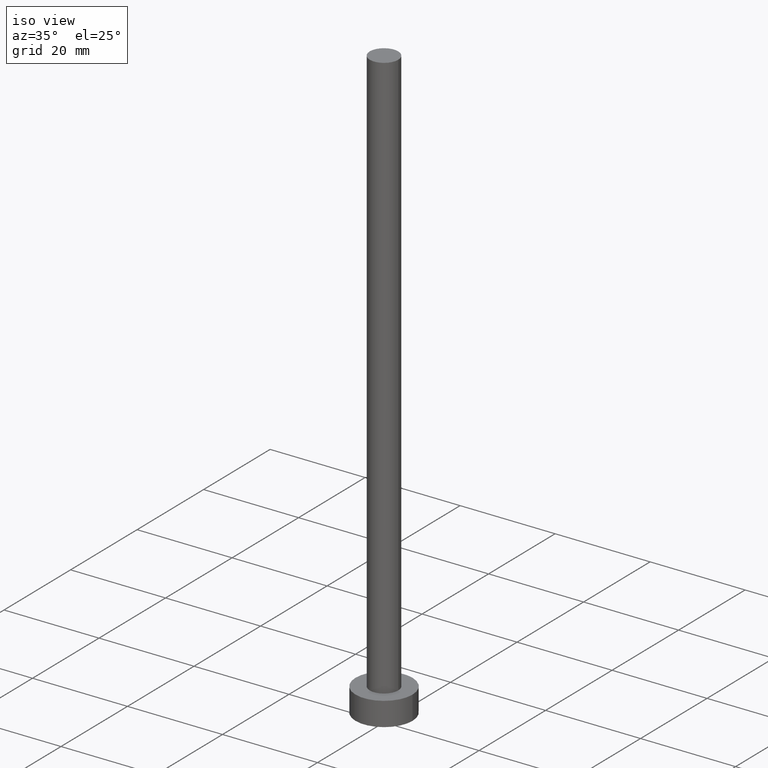
[diagram: clean part render]
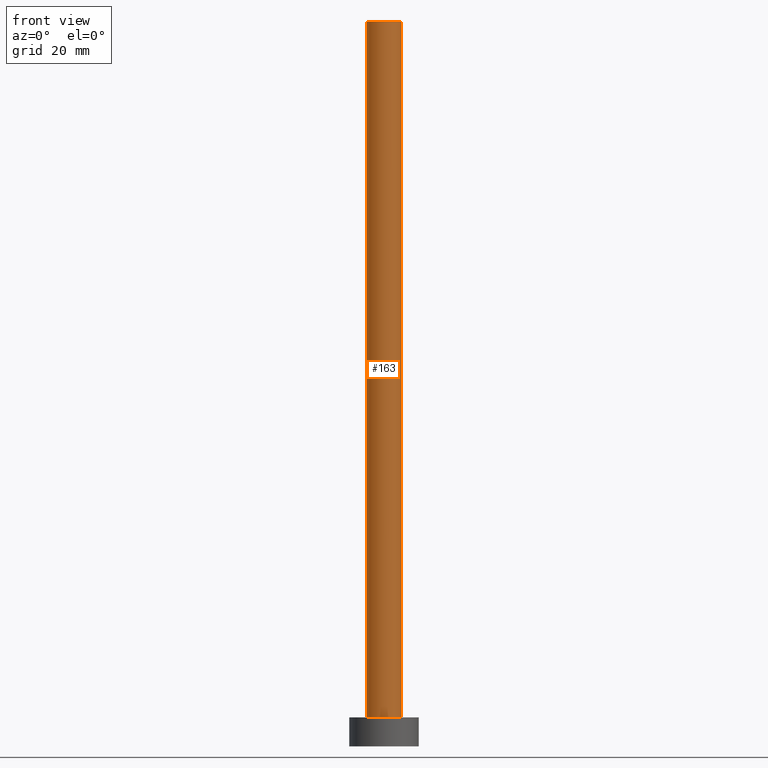
[diagram: tour spotlight — one face highlighted and labeled with its STEP entity id]
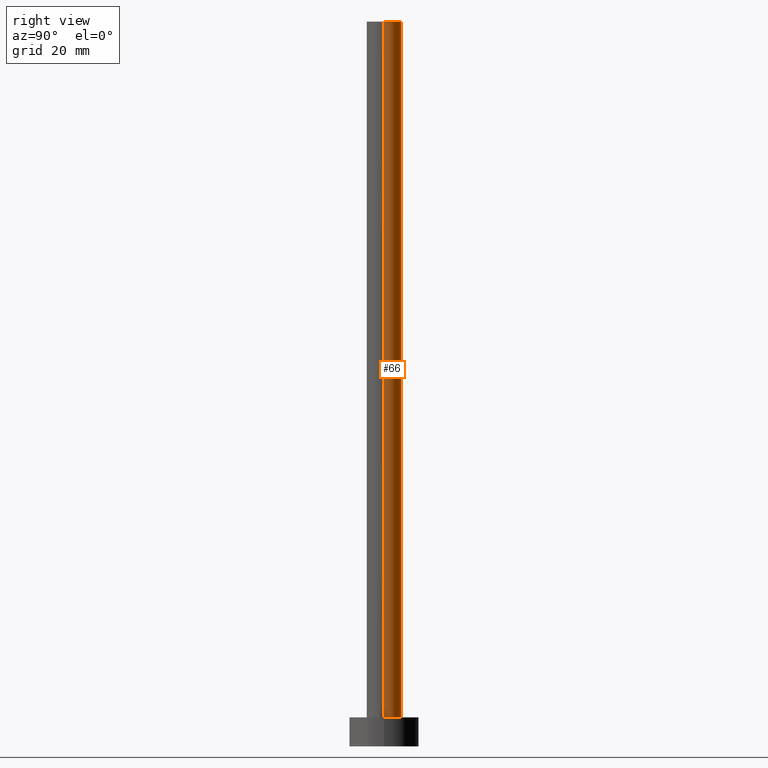
[diagram: tour spotlight — one face highlighted and labeled with its STEP entity id]
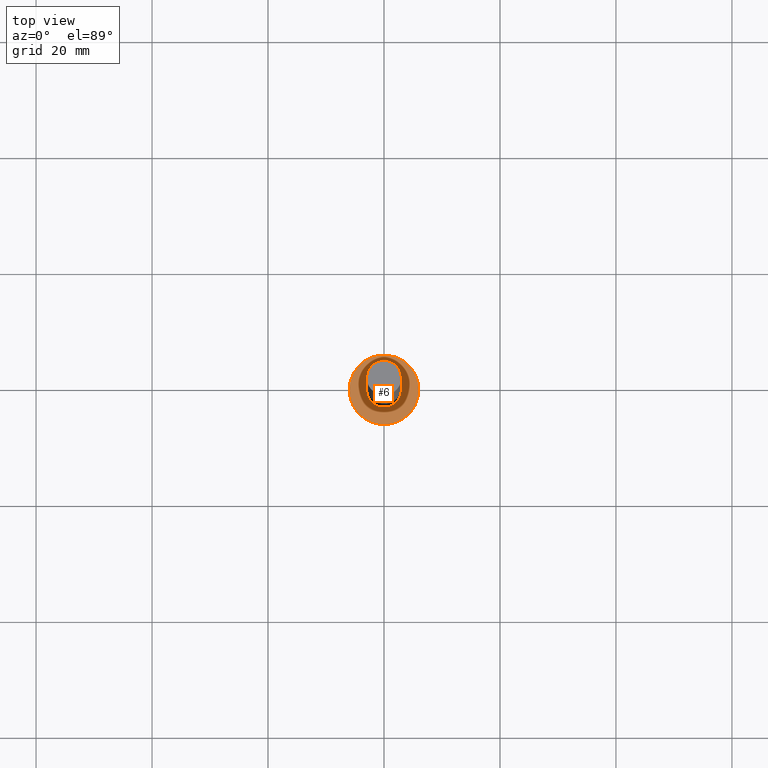
[diagram: tour spotlight — one face highlighted and labeled with its STEP entity id]
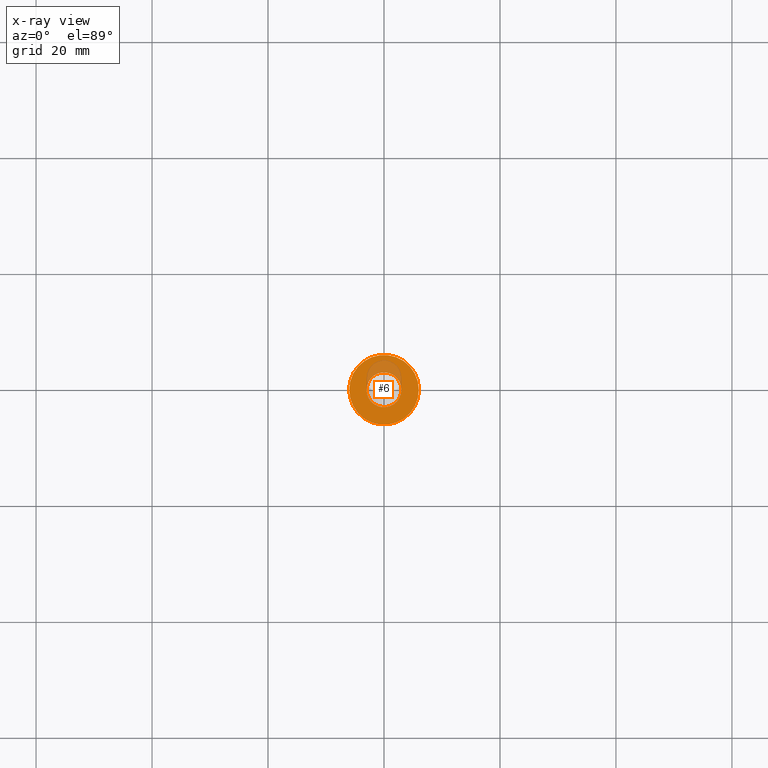
[diagram: x-ray of the same camera — body ghosted, this tour face saturated]
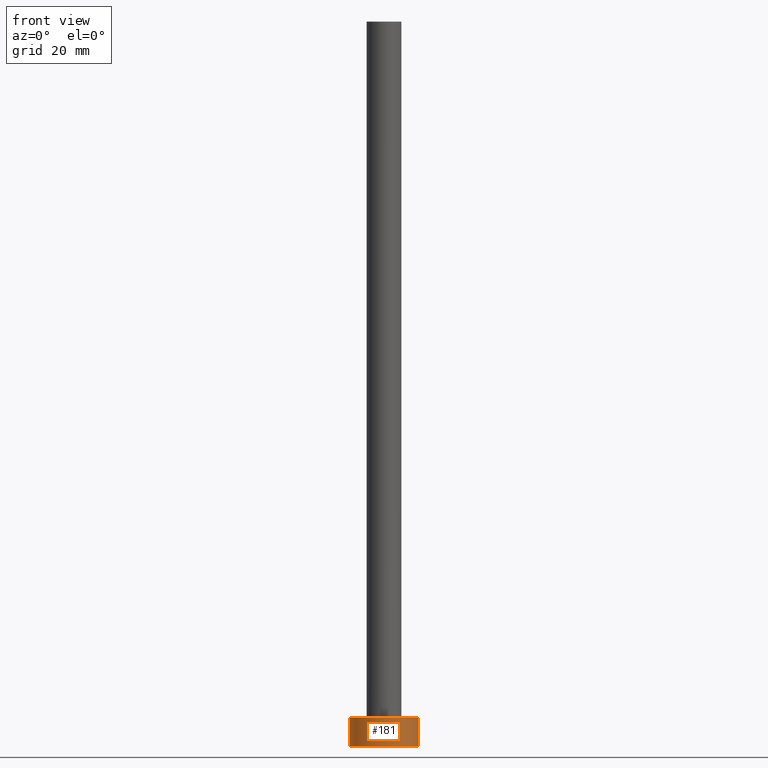
[diagram: tour spotlight — one face highlighted and labeled with its STEP entity id]
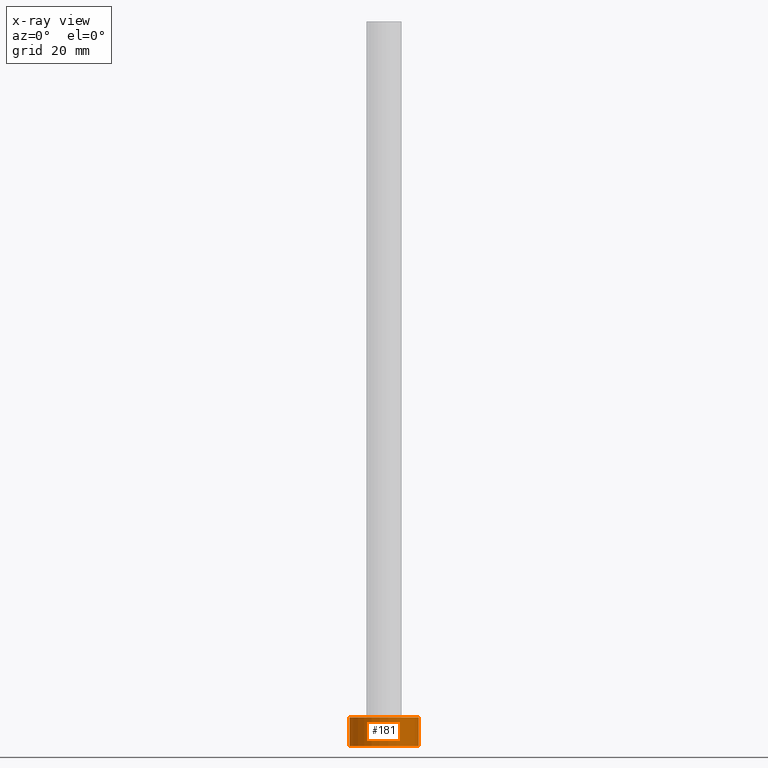
[diagram: x-ray of the same camera — body ghosted, this tour face saturated]
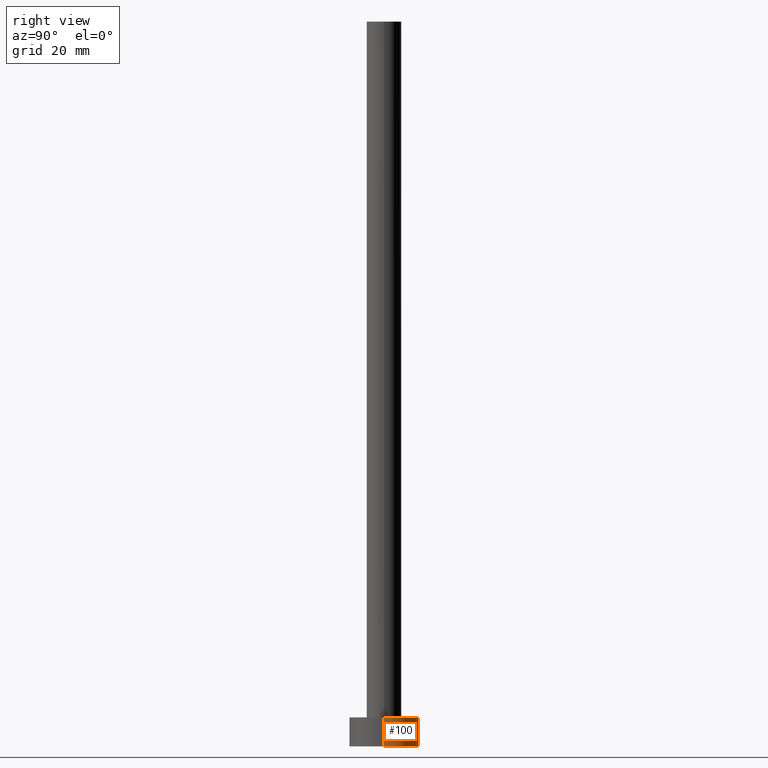
[diagram: tour spotlight — one face highlighted and labeled with its STEP entity id]
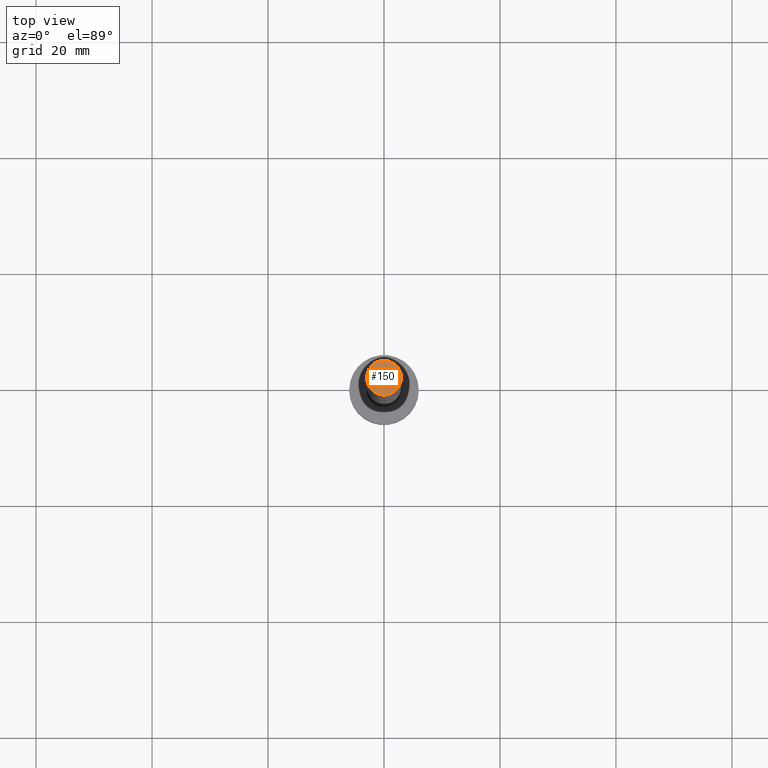
[diagram: tour spotlight — one face highlighted and labeled with its STEP entity id]
A machine part: a face-by-face anatomy tour. The part has 7 B-rep faces; the first image is the clean iso view, then the 6 largest visible faces are spotlighted one at a time (largest first), each with its STEP entity span.

Face 1 — front view, entity #163. In plain terms, the highlighted cylindrical surface (edge-blend (fillet) strip) has radius 3 mm, axis along (-0, -0, -1).
Definition (entity closure, byte-faithful):
#8 = AXIS2_PLACEMENT_3D ( 'NONE', #63, #28, #179 ) ;
#10 = CYLINDRICAL_SURFACE ( 'NONE', #159, 3.000000000000000444 ) ;
#11 = CARTESIAN_POINT ( 'NONE',  ( 0.000000000000000000, 0.000000000000000000, 125.0000000000000000 ) ) ;
#16 = EDGE_CURVE ( 'NONE', #156, #219, #175, .T. ) ;
#28 = DIRECTION ( 'NONE',  ( 0.000000000000000000, 0.000000000000000000, 1.000000000000000000 ) ) ;
#46 = CARTESIAN_POINT ( 'NONE',  ( 3.000000000000000444, 3.673940397442060361E-16, 5.000000000000000000 ) ) ;
#55 = VERTEX_POINT ( 'NONE', #74 ) ;
#60 = FACE_OUTER_BOUND ( 'NONE', #130, .T. ) ;
#63 = CARTESIAN_POINT ( 'NONE',  ( 0.000000000000000000, 0.000000000000000000, 5.000000000000000000 ) ) ;
#74 = CARTESIAN_POINT ( 'NONE',  ( -3.000000000000000444, 0.000000000000000000, 5.000000000000000000 ) ) ;
#75 = CIRCLE ( 'NONE', #107, 3.000000000000000444 ) ;
#80 = DIRECTION ( 'NONE',  ( 0.000000000000000000, 0.000000000000000000, 1.000000000000000000 ) ) ;
#83 = ORIENTED_EDGE ( 'NONE', *, *, #16, .F. ) ;
#91 = ORIENTED_EDGE ( 'NONE', *, *, #235, .T. ) ;
#107 = AXIS2_PLACEMENT_3D ( 'NONE', #139, #80, #162 ) ;
#110 = EDGE_CURVE ( 'NONE', #212, #55, #245, .T. ) ;
#111 = CARTESIAN_POINT ( 'NONE',  ( 3.000000000000000444, 3.673940397442060361E-16, 125.0000000000000000 ) ) ;
#120 = DIRECTION ( 'NONE',  ( -0.000000000000000000, -0.000000000000000000, -1.000000000000000000 ) ) ;
#130 = EDGE_LOOP ( 'NONE', ( #83, #218, #173, #91 ) ) ;
#139 = CARTESIAN_POINT ( 'NONE',  ( 0.000000000000000000, 0.000000000000000000, 125.0000000000000000 ) ) ;
#140 = CARTESIAN_POINT ( 'NONE',  ( 3.000000000000000444, 3.673940397442060361E-16, 125.0000000000000000 ) ) ;
#152 = DIRECTION ( 'NONE',  ( -0.000000000000000000, -0.000000000000000000, -1.000000000000000000 ) ) ;
#154 = CIRCLE ( 'NONE', #8, 3.000000000000000444 ) ;
#156 = VERTEX_POINT ( 'NONE', #140 ) ;
#157 = VECTOR ( 'NONE', #120, 1000.000000000000000 ) ;
#158 = DIRECTION ( 'NONE',  ( -1.000000000000000000, 0.000000000000000000, 0.000000000000000000 ) ) ;
#159 = AXIS2_PLACEMENT_3D ( 'NONE', #11, #182, #158 ) ;
#162 = DIRECTION ( 'NONE',  ( 1.000000000000000000, 0.000000000000000000, 0.000000000000000000 ) ) ;
#163 = ADVANCED_FACE ( 'NONE', ( #60 ), #10, .T. ) ;
#173 = ORIENTED_EDGE ( 'NONE', *, *, #110, .T. ) ;
#175 = LINE ( 'NONE', #111, #213 ) ;
#179 = DIRECTION ( 'NONE',  ( 1.000000000000000000, 0.000000000000000000, 0.000000000000000000 ) ) ;
#182 = DIRECTION ( 'NONE',  ( -0.000000000000000000, -0.000000000000000000, -1.000000000000000000 ) ) ;
#186 = EDGE_CURVE ( 'NONE', #212, #156, #75, .T. ) ;
#198 = CARTESIAN_POINT ( 'NONE',  ( -3.000000000000000444, 0.000000000000000000, 125.0000000000000000 ) ) ;
#212 = VERTEX_POINT ( 'NONE', #223 ) ;
#213 = VECTOR ( 'NONE', #152, 1000.000000000000000 ) ;
#218 = ORIENTED_EDGE ( 'NONE', *, *, #186, .F. ) ;
#219 = VERTEX_POINT ( 'NONE', #46 ) ;
#223 = CARTESIAN_POINT ( 'NONE',  ( -3.000000000000000444, 0.000000000000000000, 125.0000000000000000 ) ) ;
#235 = EDGE_CURVE ( 'NONE', #55, #219, #154, .T. ) ;
#245 = LINE ( 'NONE', #198, #157 ) ;

Face 2 — right view, entity #66. In plain terms, the highlighted cylindrical surface (edge-blend (fillet) strip) has radius 3 mm, axis along (-0, -0, -1).
Definition (entity closure, byte-faithful):
#15 = CIRCLE ( 'NONE', #220, 3.000000000000000444 ) ;
#16 = EDGE_CURVE ( 'NONE', #156, #219, #175, .T. ) ;
#31 = DIRECTION ( 'NONE',  ( 1.000000000000000000, 0.000000000000000000, 0.000000000000000000 ) ) ;
#41 = ORIENTED_EDGE ( 'NONE', *, *, #16, .T. ) ;
#46 = CARTESIAN_POINT ( 'NONE',  ( 3.000000000000000444, 3.673940397442060361E-16, 5.000000000000000000 ) ) ;
#55 = VERTEX_POINT ( 'NONE', #74 ) ;
#57 = EDGE_CURVE ( 'NONE', #156, #212, #15, .T. ) ;
#58 = FACE_OUTER_BOUND ( 'NONE', #241, .T. ) ;
#66 = ADVANCED_FACE ( 'NONE', ( #58 ), #240, .T. ) ;
#74 = CARTESIAN_POINT ( 'NONE',  ( -3.000000000000000444, 0.000000000000000000, 5.000000000000000000 ) ) ;
#93 = ORIENTED_EDGE ( 'NONE', *, *, #233, .T. ) ;
#106 = AXIS2_PLACEMENT_3D ( 'NONE', #118, #180, #31 ) ;
#109 = ORIENTED_EDGE ( 'NONE', *, *, #110, .F. ) ;
#110 = EDGE_CURVE ( 'NONE', #212, #55, #245, .T. ) ;
#111 = CARTESIAN_POINT ( 'NONE',  ( 3.000000000000000444, 3.673940397442060361E-16, 125.0000000000000000 ) ) ;
#118 = CARTESIAN_POINT ( 'NONE',  ( 0.000000000000000000, 0.000000000000000000, 5.000000000000000000 ) ) ;
#120 = DIRECTION ( 'NONE',  ( -0.000000000000000000, -0.000000000000000000, -1.000000000000000000 ) ) ;
#131 = AXIS2_PLACEMENT_3D ( 'NONE', #135, #195, #136 ) ;
#135 = CARTESIAN_POINT ( 'NONE',  ( 0.000000000000000000, 0.000000000000000000, 125.0000000000000000 ) ) ;
#136 = DIRECTION ( 'NONE',  ( -1.000000000000000000, 0.000000000000000000, 0.000000000000000000 ) ) ;
#140 = CARTESIAN_POINT ( 'NONE',  ( 3.000000000000000444, 3.673940397442060361E-16, 125.0000000000000000 ) ) ;
#152 = DIRECTION ( 'NONE',  ( -0.000000000000000000, -0.000000000000000000, -1.000000000000000000 ) ) ;
#153 = CARTESIAN_POINT ( 'NONE',  ( 0.000000000000000000, 0.000000000000000000, 125.0000000000000000 ) ) ;
#155 = DIRECTION ( 'NONE',  ( 1.000000000000000000, 0.000000000000000000, 0.000000000000000000 ) ) ;
#156 = VERTEX_POINT ( 'NONE', #140 ) ;
#157 = VECTOR ( 'NONE', #120, 1000.000000000000000 ) ;
#174 = ORIENTED_EDGE ( 'NONE', *, *, #57, .F. ) ;
#175 = LINE ( 'NONE', #111, #213 ) ;
#180 = DIRECTION ( 'NONE',  ( 0.000000000000000000, 0.000000000000000000, 1.000000000000000000 ) ) ;
#195 = DIRECTION ( 'NONE',  ( -0.000000000000000000, -0.000000000000000000, -1.000000000000000000 ) ) ;
#198 = CARTESIAN_POINT ( 'NONE',  ( -3.000000000000000444, 0.000000000000000000, 125.0000000000000000 ) ) ;
#212 = VERTEX_POINT ( 'NONE', #223 ) ;
#213 = VECTOR ( 'NONE', #152, 1000.000000000000000 ) ;
#219 = VERTEX_POINT ( 'NONE', #46 ) ;
#220 = AXIS2_PLACEMENT_3D ( 'NONE', #153, #239, #155 ) ;
#223 = CARTESIAN_POINT ( 'NONE',  ( -3.000000000000000444, 0.000000000000000000, 125.0000000000000000 ) ) ;
#226 = CIRCLE ( 'NONE', #106, 3.000000000000000444 ) ;
#233 = EDGE_CURVE ( 'NONE', #219, #55, #226, .T. ) ;
#239 = DIRECTION ( 'NONE',  ( 0.000000000000000000, 0.000000000000000000, 1.000000000000000000 ) ) ;
#240 = CYLINDRICAL_SURFACE ( 'NONE', #131, 3.000000000000000444 ) ;
#241 = EDGE_LOOP ( 'NONE', ( #174, #41, #93, #109 ) ) ;
#245 = LINE ( 'NONE', #198, #157 ) ;

Face 3 — top view, entity #6. An x-ray twin of the same camera follows (body ghosted, this face saturated) — the face is partly hidden behind the body. In plain terms, the highlighted planar face has unit normal (0, 0, 1).
Definition (entity closure, byte-faithful):
#1 = CIRCLE ( 'NONE', #123, 6.000000000000000888 ) ;
#6 = ADVANCED_FACE ( 'NONE', ( #76, #178 ), #73, .T. ) ;
#7 = ORIENTED_EDGE ( 'NONE', *, *, #235, .F. ) ;
#8 = AXIS2_PLACEMENT_3D ( 'NONE', #63, #28, #179 ) ;
#22 = VERTEX_POINT ( 'NONE', #24 ) ;
#24 = CARTESIAN_POINT ( 'NONE',  ( 6.000000000000000888, 7.347880794884120722E-16, 5.000000000000000000 ) ) ;
#26 = DIRECTION ( 'NONE',  ( 1.000000000000000000, 0.000000000000000000, -0.000000000000000000 ) ) ;
#27 = DIRECTION ( 'NONE',  ( 1.000000000000000000, 0.000000000000000000, 0.000000000000000000 ) ) ;
#28 = DIRECTION ( 'NONE',  ( 0.000000000000000000, 0.000000000000000000, 1.000000000000000000 ) ) ;
#29 = EDGE_CURVE ( 'NONE', #22, #151, #204, .T. ) ;
#31 = DIRECTION ( 'NONE',  ( 1.000000000000000000, 0.000000000000000000, 0.000000000000000000 ) ) ;
#33 = ORIENTED_EDGE ( 'NONE', *, *, #89, .T. ) ;
#39 = DIRECTION ( 'NONE',  ( 0.000000000000000000, 0.000000000000000000, 1.000000000000000000 ) ) ;
#42 = CARTESIAN_POINT ( 'NONE',  ( 0.000000000000000000, 0.000000000000000000, 5.000000000000000000 ) ) ;
#44 = CARTESIAN_POINT ( 'NONE',  ( 0.000000000000000000, 0.000000000000000000, 5.000000000000000000 ) ) ;
#46 = CARTESIAN_POINT ( 'NONE',  ( 3.000000000000000444, 3.673940397442060361E-16, 5.000000000000000000 ) ) ;
#54 = AXIS2_PLACEMENT_3D ( 'NONE', #44, #39, #26 ) ;
#55 = VERTEX_POINT ( 'NONE', #74 ) ;
#59 = DIRECTION ( 'NONE',  ( 0.000000000000000000, 0.000000000000000000, 1.000000000000000000 ) ) ;
#63 = CARTESIAN_POINT ( 'NONE',  ( 0.000000000000000000, 0.000000000000000000, 5.000000000000000000 ) ) ;
#71 = AXIS2_PLACEMENT_3D ( 'NONE', #42, #59, #129 ) ;
#73 = PLANE ( 'NONE',  #54 ) ;
#74 = CARTESIAN_POINT ( 'NONE',  ( -3.000000000000000444, 0.000000000000000000, 5.000000000000000000 ) ) ;
#76 = FACE_BOUND ( 'NONE', #133, .T. ) ;
#89 = EDGE_CURVE ( 'NONE', #151, #22, #1, .T. ) ;
#101 = ORIENTED_EDGE ( 'NONE', *, *, #233, .F. ) ;
#106 = AXIS2_PLACEMENT_3D ( 'NONE', #118, #180, #31 ) ;
#114 = EDGE_LOOP ( 'NONE', ( #33, #124 ) ) ;
#115 = CARTESIAN_POINT ( 'NONE',  ( 0.000000000000000000, 0.000000000000000000, 5.000000000000000000 ) ) ;
#118 = CARTESIAN_POINT ( 'NONE',  ( 0.000000000000000000, 0.000000000000000000, 5.000000000000000000 ) ) ;
#123 = AXIS2_PLACEMENT_3D ( 'NONE', #115, #197, #27 ) ;
#124 = ORIENTED_EDGE ( 'NONE', *, *, #29, .T. ) ;
#129 = DIRECTION ( 'NONE',  ( 1.000000000000000000, 0.000000000000000000, 0.000000000000000000 ) ) ;
#133 = EDGE_LOOP ( 'NONE', ( #7, #101 ) ) ;
#151 = VERTEX_POINT ( 'NONE', #164 ) ;
#154 = CIRCLE ( 'NONE', #8, 3.000000000000000444 ) ;
#164 = CARTESIAN_POINT ( 'NONE',  ( -6.000000000000000888, 0.000000000000000000, 5.000000000000000000 ) ) ;
#178 = FACE_OUTER_BOUND ( 'NONE', #114, .T. ) ;
#179 = DIRECTION ( 'NONE',  ( 1.000000000000000000, 0.000000000000000000, 0.000000000000000000 ) ) ;
#180 = DIRECTION ( 'NONE',  ( 0.000000000000000000, 0.000000000000000000, 1.000000000000000000 ) ) ;
#197 = DIRECTION ( 'NONE',  ( 0.000000000000000000, 0.000000000000000000, 1.000000000000000000 ) ) ;
#204 = CIRCLE ( 'NONE', #71, 6.000000000000000888 ) ;
#219 = VERTEX_POINT ( 'NONE', #46 ) ;
#226 = CIRCLE ( 'NONE', #106, 3.000000000000000444 ) ;
#233 = EDGE_CURVE ( 'NONE', #219, #55, #226, .T. ) ;
#235 = EDGE_CURVE ( 'NONE', #55, #219, #154, .T. ) ;

Face 4 — front view, entity #181. An x-ray twin of the same camera follows (body ghosted, this face saturated) — the face is partly hidden behind the body. In plain terms, the highlighted cylindrical surface (edge-blend (fillet) strip) has radius 6 mm, axis along (-0, -0, -1).
Definition (entity closure, byte-faithful):
#1 = CIRCLE ( 'NONE', #123, 6.000000000000000888 ) ;
#3 = ORIENTED_EDGE ( 'NONE', *, *, #43, .T. ) ;
#4 = LINE ( 'NONE', #236, #196 ) ;
#14 = DIRECTION ( 'NONE',  ( -0.000000000000000000, -0.000000000000000000, -1.000000000000000000 ) ) ;
#22 = VERTEX_POINT ( 'NONE', #24 ) ;
#23 = DIRECTION ( 'NONE',  ( 0.000000000000000000, 0.000000000000000000, 1.000000000000000000 ) ) ;
#24 = CARTESIAN_POINT ( 'NONE',  ( 6.000000000000000888, 7.347880794884120722E-16, 5.000000000000000000 ) ) ;
#25 = EDGE_CURVE ( 'NONE', #185, #211, #142, .T. ) ;
#27 = DIRECTION ( 'NONE',  ( 1.000000000000000000, 0.000000000000000000, 0.000000000000000000 ) ) ;
#43 = EDGE_CURVE ( 'NONE', #151, #185, #4, .T. ) ;
#56 = DIRECTION ( 'NONE',  ( -0.000000000000000000, -0.000000000000000000, -1.000000000000000000 ) ) ;
#72 = ORIENTED_EDGE ( 'NONE', *, *, #89, .F. ) ;
#81 = CARTESIAN_POINT ( 'NONE',  ( -6.000000000000000888, 0.000000000000000000, 0.000000000000000000 ) ) ;
#89 = EDGE_CURVE ( 'NONE', #151, #22, #1, .T. ) ;
#96 = FACE_OUTER_BOUND ( 'NONE', #177, .T. ) ;
#97 = CARTESIAN_POINT ( 'NONE',  ( 0.000000000000000000, 0.000000000000000000, 5.000000000000000000 ) ) ;
#98 = AXIS2_PLACEMENT_3D ( 'NONE', #193, #23, #215 ) ;
#115 = CARTESIAN_POINT ( 'NONE',  ( 0.000000000000000000, 0.000000000000000000, 5.000000000000000000 ) ) ;
#119 = DIRECTION ( 'NONE',  ( -0.000000000000000000, -0.000000000000000000, -1.000000000000000000 ) ) ;
#123 = AXIS2_PLACEMENT_3D ( 'NONE', #115, #197, #27 ) ;
#142 = CIRCLE ( 'NONE', #98, 6.000000000000000888 ) ;
#148 = ORIENTED_EDGE ( 'NONE', *, *, #25, .T. ) ;
#151 = VERTEX_POINT ( 'NONE', #164 ) ;
#161 = CYLINDRICAL_SURFACE ( 'NONE', #227, 6.000000000000000888 ) ;
#164 = CARTESIAN_POINT ( 'NONE',  ( -6.000000000000000888, 0.000000000000000000, 5.000000000000000000 ) ) ;
#172 = EDGE_CURVE ( 'NONE', #22, #211, #243, .T. ) ;
#177 = EDGE_LOOP ( 'NONE', ( #234, #72, #3, #148 ) ) ;
#181 = ADVANCED_FACE ( 'NONE', ( #96 ), #161, .T. ) ;
#185 = VERTEX_POINT ( 'NONE', #81 ) ;
#193 = CARTESIAN_POINT ( 'NONE',  ( 0.000000000000000000, 0.000000000000000000, 0.000000000000000000 ) ) ;
#196 = VECTOR ( 'NONE', #56, 1000.000000000000000 ) ;
#197 = DIRECTION ( 'NONE',  ( 0.000000000000000000, 0.000000000000000000, 1.000000000000000000 ) ) ;
#199 = CARTESIAN_POINT ( 'NONE',  ( 6.000000000000000888, 7.347880794884120722E-16, 0.000000000000000000 ) ) ;
#211 = VERTEX_POINT ( 'NONE', #199 ) ;
#215 = DIRECTION ( 'NONE',  ( 1.000000000000000000, 0.000000000000000000, 0.000000000000000000 ) ) ;
#225 = DIRECTION ( 'NONE',  ( -1.000000000000000000, 0.000000000000000000, 0.000000000000000000 ) ) ;
#227 = AXIS2_PLACEMENT_3D ( 'NONE', #97, #14, #225 ) ;
#234 = ORIENTED_EDGE ( 'NONE', *, *, #172, .F. ) ;
#236 = CARTESIAN_POINT ( 'NONE',  ( -6.000000000000000888, 0.000000000000000000, 5.000000000000000000 ) ) ;
#237 = VECTOR ( 'NONE', #119, 1000.000000000000000 ) ;
#243 = LINE ( 'NONE', #247, #237 ) ;
#247 = CARTESIAN_POINT ( 'NONE',  ( 6.000000000000000888, 7.347880794884120722E-16, 5.000000000000000000 ) ) ;

Face 5 — right view, entity #100. In plain terms, the highlighted cylindrical surface (edge-blend (fillet) strip) has radius 6 mm, axis along (-0, -0, -1).
Definition (entity closure, byte-faithful):
#4 = LINE ( 'NONE', #236, #196 ) ;
#5 = ORIENTED_EDGE ( 'NONE', *, *, #43, .F. ) ;
#9 = CYLINDRICAL_SURFACE ( 'NONE', #50, 6.000000000000000888 ) ;
#22 = VERTEX_POINT ( 'NONE', #24 ) ;
#24 = CARTESIAN_POINT ( 'NONE',  ( 6.000000000000000888, 7.347880794884120722E-16, 5.000000000000000000 ) ) ;
#29 = EDGE_CURVE ( 'NONE', #22, #151, #204, .T. ) ;
#38 = DIRECTION ( 'NONE',  ( -0.000000000000000000, -0.000000000000000000, -1.000000000000000000 ) ) ;
#42 = CARTESIAN_POINT ( 'NONE',  ( 0.000000000000000000, 0.000000000000000000, 5.000000000000000000 ) ) ;
#43 = EDGE_CURVE ( 'NONE', #151, #185, #4, .T. ) ;
#47 = DIRECTION ( 'NONE',  ( 1.000000000000000000, 0.000000000000000000, 0.000000000000000000 ) ) ;
#50 = AXIS2_PLACEMENT_3D ( 'NONE', #77, #38, #141 ) ;
#51 = EDGE_LOOP ( 'NONE', ( #191, #88, #168, #5 ) ) ;
#56 = DIRECTION ( 'NONE',  ( -0.000000000000000000, -0.000000000000000000, -1.000000000000000000 ) ) ;
#59 = DIRECTION ( 'NONE',  ( 0.000000000000000000, 0.000000000000000000, 1.000000000000000000 ) ) ;
#71 = AXIS2_PLACEMENT_3D ( 'NONE', #42, #59, #129 ) ;
#77 = CARTESIAN_POINT ( 'NONE',  ( 0.000000000000000000, 0.000000000000000000, 5.000000000000000000 ) ) ;
#81 = CARTESIAN_POINT ( 'NONE',  ( -6.000000000000000888, 0.000000000000000000, 0.000000000000000000 ) ) ;
#87 = FACE_OUTER_BOUND ( 'NONE', #51, .T. ) ;
#88 = ORIENTED_EDGE ( 'NONE', *, *, #172, .T. ) ;
#100 = ADVANCED_FACE ( 'NONE', ( #87 ), #9, .T. ) ;
#119 = DIRECTION ( 'NONE',  ( -0.000000000000000000, -0.000000000000000000, -1.000000000000000000 ) ) ;
#129 = DIRECTION ( 'NONE',  ( 1.000000000000000000, 0.000000000000000000, 0.000000000000000000 ) ) ;
#141 = DIRECTION ( 'NONE',  ( -1.000000000000000000, 0.000000000000000000, 0.000000000000000000 ) ) ;
#143 = DIRECTION ( 'NONE',  ( 0.000000000000000000, 0.000000000000000000, 1.000000000000000000 ) ) ;
#151 = VERTEX_POINT ( 'NONE', #164 ) ;
#160 = CARTESIAN_POINT ( 'NONE',  ( 0.000000000000000000, 0.000000000000000000, 0.000000000000000000 ) ) ;
#164 = CARTESIAN_POINT ( 'NONE',  ( -6.000000000000000888, 0.000000000000000000, 5.000000000000000000 ) ) ;
#168 = ORIENTED_EDGE ( 'NONE', *, *, #255, .T. ) ;
#172 = EDGE_CURVE ( 'NONE', #22, #211, #243, .T. ) ;
#185 = VERTEX_POINT ( 'NONE', #81 ) ;
#191 = ORIENTED_EDGE ( 'NONE', *, *, #29, .F. ) ;
#196 = VECTOR ( 'NONE', #56, 1000.000000000000000 ) ;
#199 = CARTESIAN_POINT ( 'NONE',  ( 6.000000000000000888, 7.347880794884120722E-16, 0.000000000000000000 ) ) ;
#204 = CIRCLE ( 'NONE', #71, 6.000000000000000888 ) ;
#211 = VERTEX_POINT ( 'NONE', #199 ) ;
#222 = CIRCLE ( 'NONE', #244, 6.000000000000000888 ) ;
#236 = CARTESIAN_POINT ( 'NONE',  ( -6.000000000000000888, 0.000000000000000000, 5.000000000000000000 ) ) ;
#237 = VECTOR ( 'NONE', #119, 1000.000000000000000 ) ;
#243 = LINE ( 'NONE', #247, #237 ) ;
#244 = AXIS2_PLACEMENT_3D ( 'NONE', #160, #143, #47 ) ;
#247 = CARTESIAN_POINT ( 'NONE',  ( 6.000000000000000888, 7.347880794884120722E-16, 5.000000000000000000 ) ) ;
#255 = EDGE_CURVE ( 'NONE', #211, #185, #222, .T. ) ;

Face 6 — top view, entity #150. In plain terms, the highlighted planar face has unit normal (0, 0, 1).
Definition (entity closure, byte-faithful):
#15 = CIRCLE ( 'NONE', #220, 3.000000000000000444 ) ;
#30 = DIRECTION ( 'NONE',  ( 0.000000000000000000, 0.000000000000000000, 1.000000000000000000 ) ) ;
#45 = CARTESIAN_POINT ( 'NONE',  ( 0.000000000000000000, 0.000000000000000000, 125.0000000000000000 ) ) ;
#57 = EDGE_CURVE ( 'NONE', #156, #212, #15, .T. ) ;
#75 = CIRCLE ( 'NONE', #107, 3.000000000000000444 ) ;
#78 = DIRECTION ( 'NONE',  ( 1.000000000000000000, 0.000000000000000000, -0.000000000000000000 ) ) ;
#80 = DIRECTION ( 'NONE',  ( 0.000000000000000000, 0.000000000000000000, 1.000000000000000000 ) ) ;
#90 = ORIENTED_EDGE ( 'NONE', *, *, #57, .T. ) ;
#107 = AXIS2_PLACEMENT_3D ( 'NONE', #139, #80, #162 ) ;
#113 = EDGE_LOOP ( 'NONE', ( #208, #90 ) ) ;
#139 = CARTESIAN_POINT ( 'NONE',  ( 0.000000000000000000, 0.000000000000000000, 125.0000000000000000 ) ) ;
#140 = CARTESIAN_POINT ( 'NONE',  ( 3.000000000000000444, 3.673940397442060361E-16, 125.0000000000000000 ) ) ;
#150 = ADVANCED_FACE ( 'NONE', ( #200 ), #221, .T. ) ;
#153 = CARTESIAN_POINT ( 'NONE',  ( 0.000000000000000000, 0.000000000000000000, 125.0000000000000000 ) ) ;
#155 = DIRECTION ( 'NONE',  ( 1.000000000000000000, 0.000000000000000000, 0.000000000000000000 ) ) ;
#156 = VERTEX_POINT ( 'NONE', #140 ) ;
#162 = DIRECTION ( 'NONE',  ( 1.000000000000000000, 0.000000000000000000, 0.000000000000000000 ) ) ;
#186 = EDGE_CURVE ( 'NONE', #212, #156, #75, .T. ) ;
#200 = FACE_OUTER_BOUND ( 'NONE', #113, .T. ) ;
#208 = ORIENTED_EDGE ( 'NONE', *, *, #186, .T. ) ;
#212 = VERTEX_POINT ( 'NONE', #223 ) ;
#220 = AXIS2_PLACEMENT_3D ( 'NONE', #153, #239, #155 ) ;
#221 = PLANE ( 'NONE',  #230 ) ;
#223 = CARTESIAN_POINT ( 'NONE',  ( -3.000000000000000444, 0.000000000000000000, 125.0000000000000000 ) ) ;
#230 = AXIS2_PLACEMENT_3D ( 'NONE', #45, #30, #78 ) ;
#239 = DIRECTION ( 'NONE',  ( 0.000000000000000000, 0.000000000000000000, 1.000000000000000000 ) ) ;